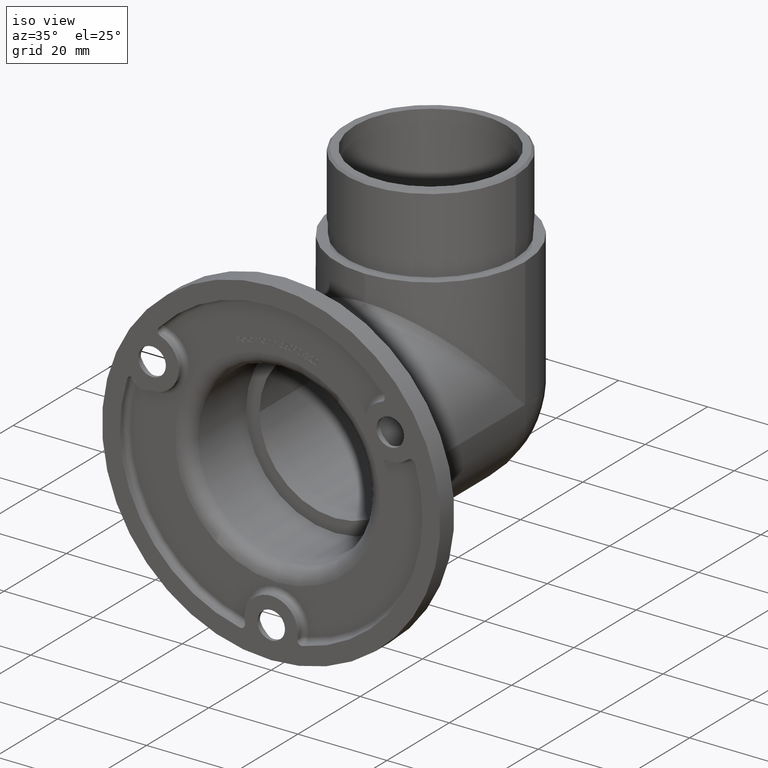
[diagram: clean part render]
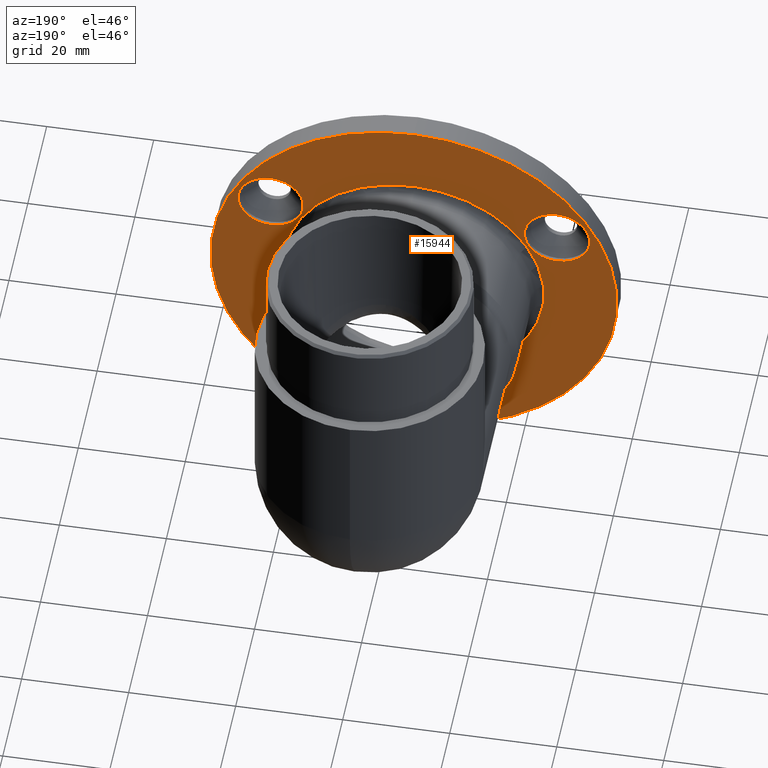
[diagram: tour spotlight — one face highlighted and labeled with its STEP entity id]
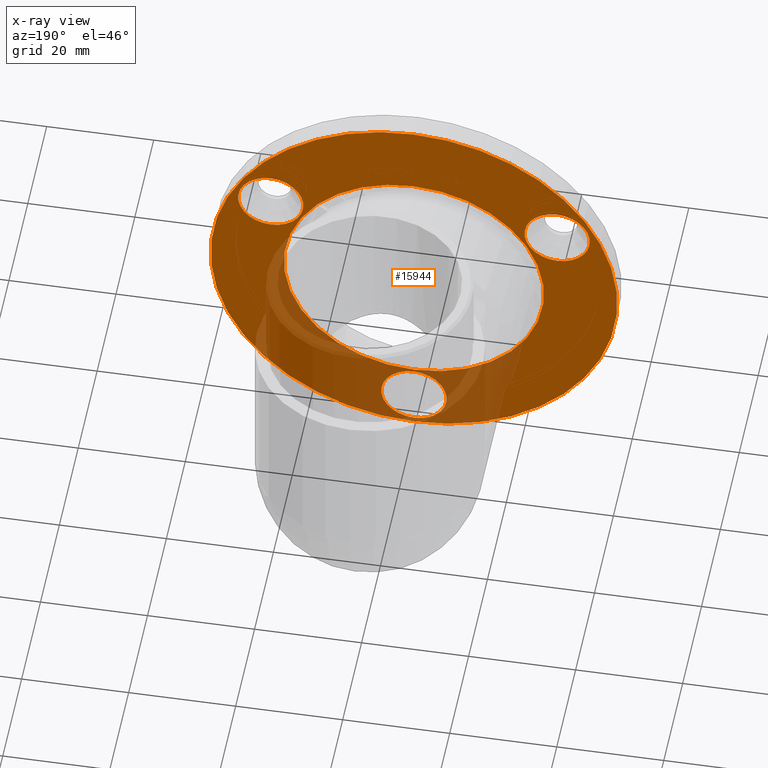
[diagram: x-ray of the same camera — body ghosted, this tour face saturated]
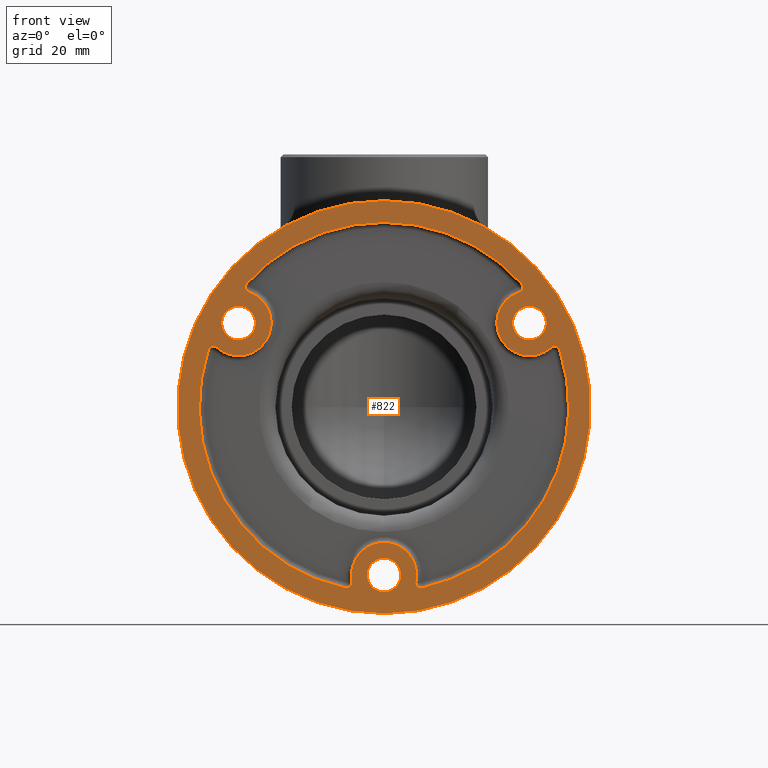
[diagram: tour spotlight — one face highlighted and labeled with its STEP entity id]
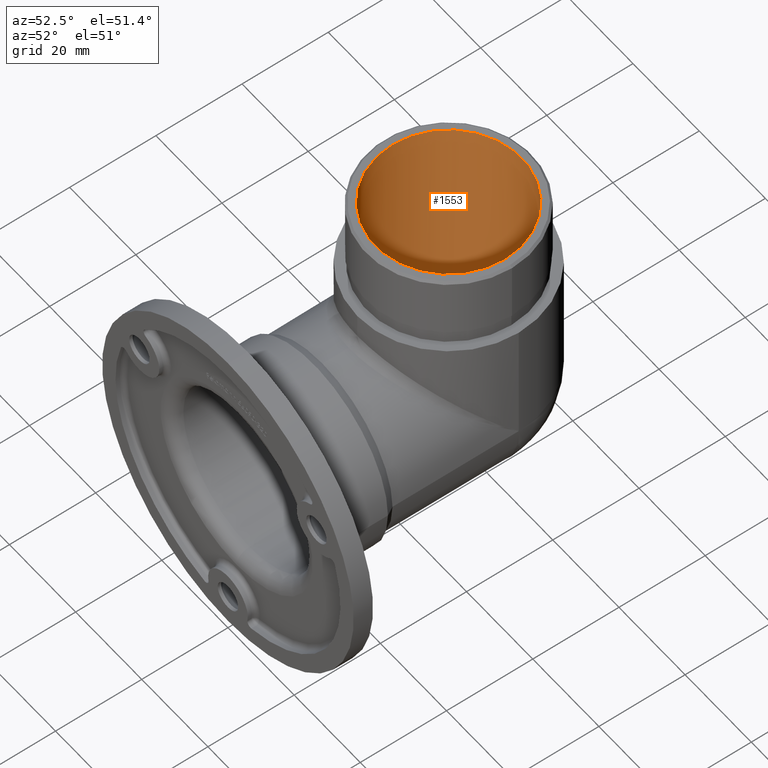
[diagram: tour spotlight — one face highlighted and labeled with its STEP entity id]
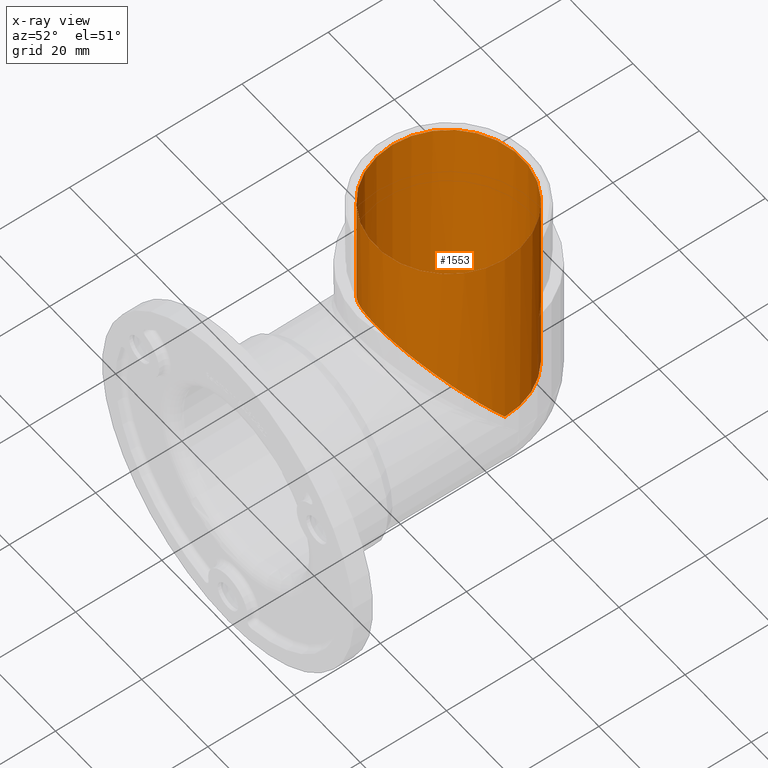
[diagram: x-ray of the same camera — body ghosted, this tour face saturated]
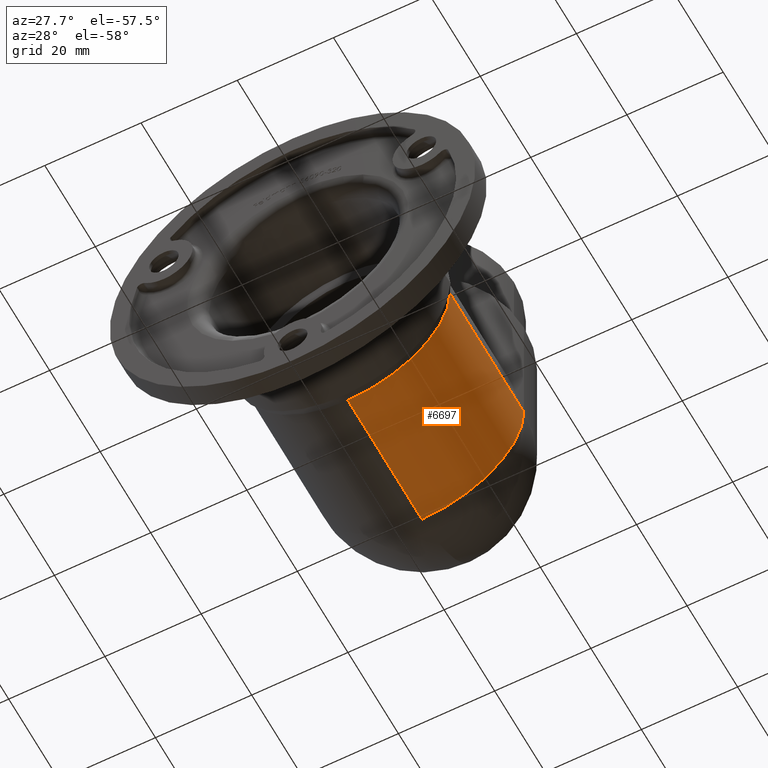
[diagram: tour spotlight — one face highlighted and labeled with its STEP entity id]
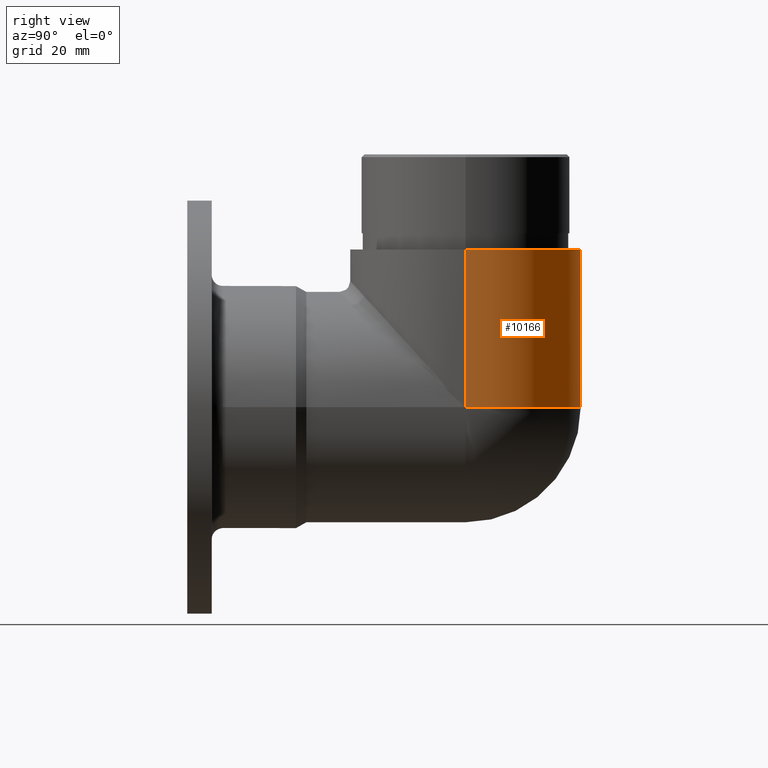
[diagram: tour spotlight — one face highlighted and labeled with its STEP entity id]
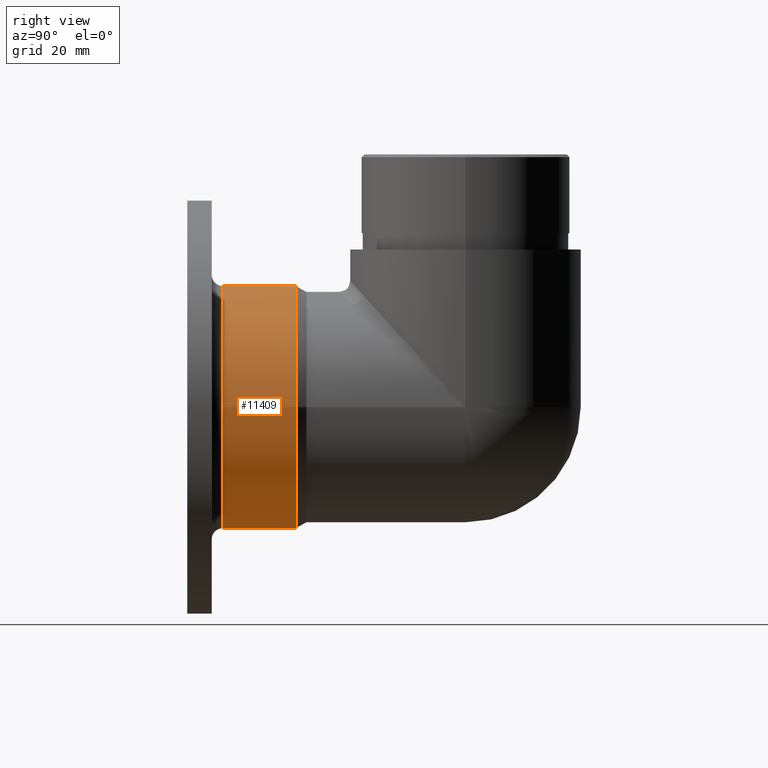
[diagram: tour spotlight — one face highlighted and labeled with its STEP entity id]
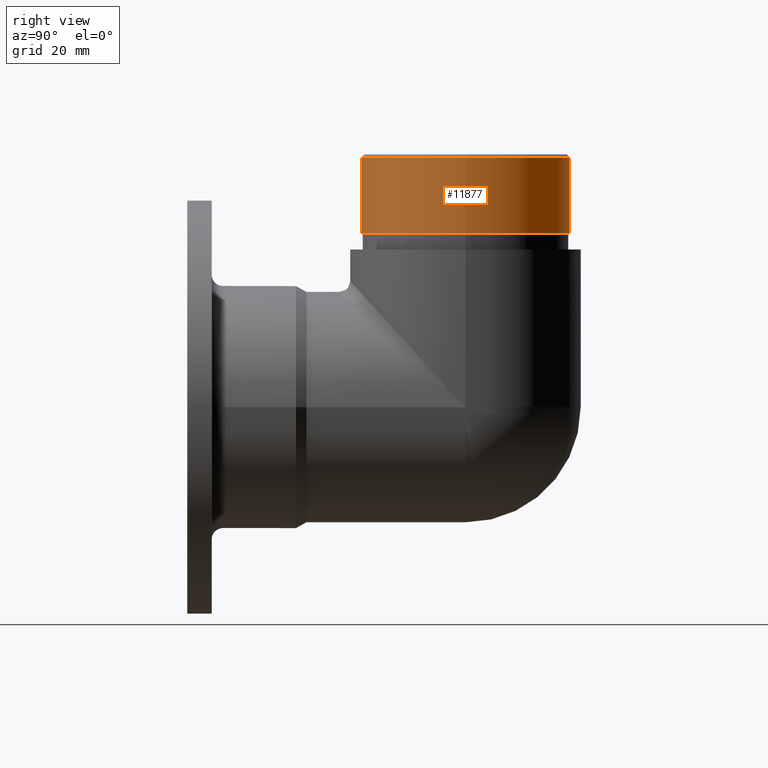
[diagram: tour spotlight — one face highlighted and labeled with its STEP entity id]
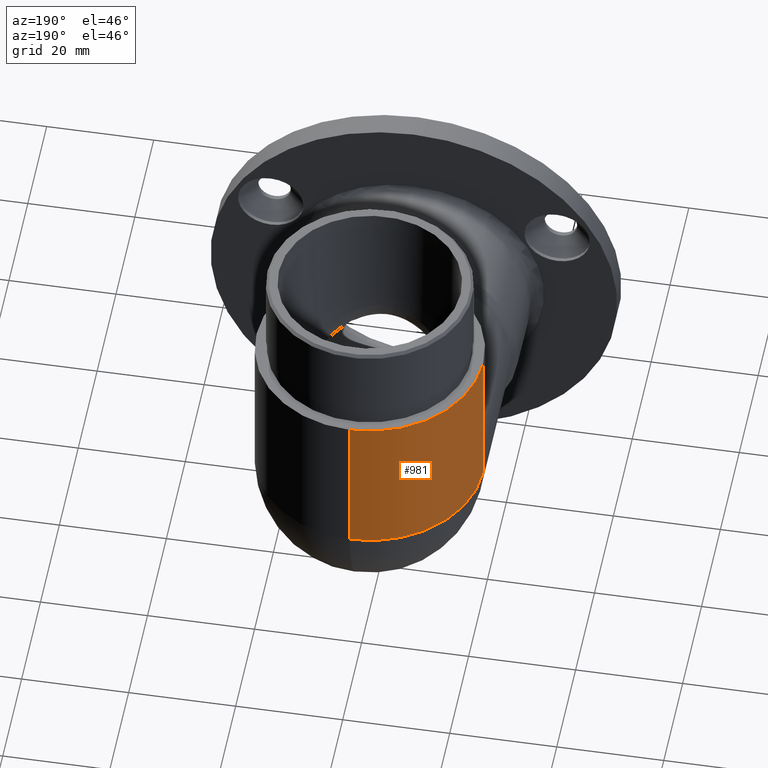
[diagram: tour spotlight — one face highlighted and labeled with its STEP entity id]
A machine part: a face-by-face anatomy tour. The part has 295 B-rep faces; the first image is the clean iso view, then the 8 largest visible faces are spotlighted one at a time (largest first), each with its STEP entity span.

Face 1 — auxiliary view, entity #15944. An x-ray twin of the same camera follows (body ghosted, this face saturated) — the face is partly hidden behind the body. In plain terms, the highlighted planar face has unit normal (0, 1, 0).
Definition (entity closure, byte-faithful):
#611 = EDGE_LOOP ( 'NONE', ( #1539 ) ) ;
#709 = DIRECTION ( 'NONE',  ( 0.0000000000000000000, 1.000000000000000000, 0.0000000000000000000 ) ) ;
#872 = AXIS2_PLACEMENT_3D ( 'NONE', #7869, #709, #9324 ) ;
#1075 = DIRECTION ( 'NONE',  ( 0.0000000000000000000, 0.0000000000000000000, 1.000000000000000000 ) ) ;
#1368 = ORIENTED_EDGE ( 'NONE', *, *, #13413, .T. ) ;
#1539 = ORIENTED_EDGE ( 'NONE', *, *, #3757, .F. ) ;
#2012 = DIRECTION ( 'NONE',  ( -0.0000000000000000000, 1.000000000000000000, -0.0000000000000000000 ) ) ;
#2114 = AXIS2_PLACEMENT_3D ( 'NONE', #13062, #13179, #13125 ) ;
#2130 = FACE_BOUND ( 'NONE', #10243, .T. ) ;
#2617 = ORIENTED_EDGE ( 'NONE', *, *, #11120, .F. ) ;
#2792 = CARTESIAN_POINT ( 'NONE',  ( -26.76018497693929300, 4.500000000000000000, 15.44999999999975100 ) ) ;
#2922 = ORIENTED_EDGE ( 'NONE', *, *, #8093, .F. ) ;
#3622 = EDGE_LOOP ( 'NONE', ( #9442 ) ) ;
#3651 = FACE_OUTER_BOUND ( 'NONE', #9746, .T. ) ;
#3757 = EDGE_CURVE ( 'NONE', #15256, #15256, #5162, .T. ) ;
#4006 = DIRECTION ( 'NONE',  ( 0.0000000000000000000, 0.0000000000000000000, 1.000000000000000000 ) ) ;
#4446 = CIRCLE ( 'NONE', #8685, 37.99999999999999300 ) ;
#5162 = CIRCLE ( 'NONE', #13972, 6.099999999999999600 ) ;
#5196 = VERTEX_POINT ( 'NONE', #10627 ) ;
#5583 = VERTEX_POINT ( 'NONE', #6894 ) ;
#5825 = EDGE_CURVE ( 'NONE', #11389, #11389, #11000, .T. ) ;
#6309 = AXIS2_PLACEMENT_3D ( 'NONE', #8124, #2012, #7046 ) ;
#6367 = FACE_BOUND ( 'NONE', #8830, .T. ) ;
#6707 = CARTESIAN_POINT ( 'NONE',  ( 1.425287815338394800E-015, 4.500000000000000000, 0.0000000000000000000 ) ) ;
#6894 = CARTESIAN_POINT ( 'NONE',  ( 0.0000000000000000000, 4.500000000000000000, -24.79999999999999700 ) ) ;
#7011 = CARTESIAN_POINT ( 'NONE',  ( 1.425287815338394800E-015, 4.500000000000000000, 24.29999999999999400 ) ) ;
#7046 = DIRECTION ( 'NONE',  ( 0.0000000000000000000, 0.0000000000000000000, 1.000000000000000000 ) ) ;
#7203 = CARTESIAN_POINT ( 'NONE',  ( 0.0000000000000000000, 4.500000000000000000, 0.0000000000000000000 ) ) ;
#7869 = CARTESIAN_POINT ( 'NONE',  ( 0.0000000000000000000, 4.500000000000000000, 0.0000000000000000000 ) ) ;
#7933 = CARTESIAN_POINT ( 'NONE',  ( -26.76018497693929300, 4.500000000000000000, 21.54999999999974800 ) ) ;
#7954 = DIRECTION ( 'NONE',  ( -0.0000000000000000000, -1.000000000000000000, -0.0000000000000000000 ) ) ;
#8093 = EDGE_CURVE ( 'NONE', #5196, #5196, #9039, .T. ) ;
#8124 = CARTESIAN_POINT ( 'NONE',  ( 0.0000000000000000000, 4.500000000000000000, -30.89999999999999900 ) ) ;
#8685 = AXIS2_PLACEMENT_3D ( 'NONE', #7203, #10829, #1075 ) ;
#8830 = EDGE_LOOP ( 'NONE', ( #2617 ) ) ;
#8852 = FACE_BOUND ( 'NONE', #3622, .T. ) ;
#9039 = CIRCLE ( 'NONE', #2114, 6.099999999999999600 ) ;
#9324 = DIRECTION ( 'NONE',  ( 0.0000000000000000000, -0.0000000000000000000, 1.000000000000000000 ) ) ;
#9442 = ORIENTED_EDGE ( 'NONE', *, *, #5825, .T. ) ;
#9746 = EDGE_LOOP ( 'NONE', ( #1368 ) ) ;
#9927 = AXIS2_PLACEMENT_3D ( 'NONE', #6707, #7954, #15415 ) ;
#10243 = EDGE_LOOP ( 'NONE', ( #2922 ) ) ;
#10627 = CARTESIAN_POINT ( 'NONE',  ( 26.76018497693908300, 4.500000000000000000, 21.55000000000012500 ) ) ;
#10829 = DIRECTION ( 'NONE',  ( 0.0000000000000000000, 1.000000000000000000, 0.0000000000000000000 ) ) ;
#11000 = CIRCLE ( 'NONE', #9927, 24.29999999999999400 ) ;
#11120 = EDGE_CURVE ( 'NONE', #5583, #5583, #13169, .T. ) ;
#11389 = VERTEX_POINT ( 'NONE', #7011 ) ;
#11408 = DIRECTION ( 'NONE',  ( -0.0000000000000000000, 1.000000000000000000, -0.0000000000000000000 ) ) ;
#12942 = PLANE ( 'NONE',  #872 ) ;
#13062 = CARTESIAN_POINT ( 'NONE',  ( 26.76018497693908300, 4.500000000000000000, 15.45000000000012500 ) ) ;
#13110 = FACE_BOUND ( 'NONE', #611, .T. ) ;
#13125 = DIRECTION ( 'NONE',  ( 0.0000000000000000000, 0.0000000000000000000, 1.000000000000000000 ) ) ;
#13169 = CIRCLE ( 'NONE', #6309, 6.100000000000001400 ) ;
#13179 = DIRECTION ( 'NONE',  ( -0.0000000000000000000, 1.000000000000000000, -0.0000000000000000000 ) ) ;
#13257 = CARTESIAN_POINT ( 'NONE',  ( 0.0000000000000000000, 4.500000000000000000, 37.99999999999999300 ) ) ;
#13413 = EDGE_CURVE ( 'NONE', #14093, #14093, #4446, .T. ) ;
#13972 = AXIS2_PLACEMENT_3D ( 'NONE', #2792, #11408, #4006 ) ;
#14093 = VERTEX_POINT ( 'NONE', #13257 ) ;
#15256 = VERTEX_POINT ( 'NONE', #7933 ) ;
#15415 = DIRECTION ( 'NONE',  ( 0.0000000000000000000, 0.0000000000000000000, 1.000000000000000000 ) ) ;
#15944 = ADVANCED_FACE ( 'NONE', ( #8852, #13110, #2130, #6367, #3651 ), #12942, .T. ) ;

Face 2 — front view, entity #822. In plain terms, the highlighted planar face has unit normal (0, -1, 0).
Definition (entity closure, byte-faithful):
#1 = CIRCLE ( 'NONE', #9635, 5.999999999999998200 ) ;
#29 = DIRECTION ( 'NONE',  ( -0.0000000000000000000, 1.000000000000000000, -0.0000000000000000000 ) ) ;
#107 = CARTESIAN_POINT ( 'NONE',  ( 0.0000000000000000000, 0.0000000000000000000, -30.89999999999999900 ) ) ;
#187 = VERTEX_POINT ( 'NONE', #7060 ) ;
#399 = VERTEX_POINT ( 'NONE', #11394 ) ;
#459 = AXIS2_PLACEMENT_3D ( 'NONE', #15043, #11087, #9992 ) ;
#563 = VERTEX_POINT ( 'NONE', #1522 ) ;
#575 = PLANE ( 'NONE',  #4452 ) ;
#691 = DIRECTION ( 'NONE',  ( 0.0000000000000000000, 0.0000000000000000000, -1.000000000000000000 ) ) ;
#759 = VERTEX_POINT ( 'NONE', #5213 ) ;
#822 = ADVANCED_FACE ( 'NONE', ( #1521, #6118, #15600, #12288, #14053 ), #575, .T. ) ;
#825 = CARTESIAN_POINT ( 'NONE',  ( -6.862929093667157000, 0.0000000000000000000, -32.27847896440129500 ) ) ;
#855 = AXIS2_PLACEMENT_3D ( 'NONE', #8792, #13958, #10151 ) ;
#945 = VERTEX_POINT ( 'NONE', #2037 ) ;
#964 = DIRECTION ( 'NONE',  ( 0.0000000000000000000, 0.0000000000000000000, -1.000000000000000000 ) ) ;
#1058 = EDGE_LOOP ( 'NONE', ( #9030 ) ) ;
#1174 = VERTEX_POINT ( 'NONE', #9013 ) ;
#1239 = ORIENTED_EDGE ( 'NONE', *, *, #1492, .T. ) ;
#1492 = EDGE_CURVE ( 'NONE', #563, #9530, #6877, .T. ) ;
#1521 = FACE_OUTER_BOUND ( 'NONE', #13092, .T. ) ;
#1522 = CARTESIAN_POINT ( 'NONE',  ( -24.84218490972826700, 0.0000000000000000000, 21.13518036144638800 ) ) ;
#1671 = DIRECTION ( 'NONE',  ( 0.0000000000000000000, -1.000000000000000000, 0.0000000000000000000 ) ) ;
#1926 = CIRCLE ( 'NONE', #6841, 3.100000000000000500 ) ;
#1948 = VERTEX_POINT ( 'NONE', #11870 ) ;
#2037 = CARTESIAN_POINT ( 'NONE',  ( -30.72469556144287800, 0.0000000000000000000, 10.94637303661134800 ) ) ;
#2320 = CIRCLE ( 'NONE', #13152, 3.099999999999998800 ) ;
#2375 = DIRECTION ( 'NONE',  ( 0.0000000000000000000, -1.000000000000000000, 0.0000000000000000000 ) ) ;
#2425 = ORIENTED_EDGE ( 'NONE', *, *, #10508, .F. ) ;
#2662 = CARTESIAN_POINT ( 'NONE',  ( -24.52251823185976300, 0.0000000000000000000, 22.08271042168749400 ) ) ;
#2666 = CARTESIAN_POINT ( 'NONE',  ( -25.26562484494642600, 0.0000000000000000000, 22.75188346476893700 ) ) ;
#2721 = AXIS2_PLACEMENT_3D ( 'NONE', #9983, #4011, #13661 ) ;
#2729 = CARTESIAN_POINT ( 'NONE',  ( 26.76018497693908300, 0.0000000000000000000, 15.45000000000012500 ) ) ;
#2731 = ORIENTED_EDGE ( 'NONE', *, *, #12155, .F. ) ;
#2789 = DIRECTION ( 'NONE',  ( 0.0000000000000000000, 0.0000000000000000000, -1.000000000000000000 ) ) ;
#3188 = CARTESIAN_POINT ( 'NONE',  ( 0.0000000000000000000, 0.0000000000000000000, 0.0000000000000000000 ) ) ;
#3273 = CIRCLE ( 'NONE', #13446, 1.000000000000000900 ) ;
#3406 = CARTESIAN_POINT ( 'NONE',  ( -26.76018497693929300, 0.0000000000000000000, 12.34999999999974900 ) ) ;
#3547 = CARTESIAN_POINT ( 'NONE',  ( -7.070896641960102300, 0.0000000000000000000, -33.25661469059527800 ) ) ;
#3553 = ORIENTED_EDGE ( 'NONE', *, *, #14329, .T. ) ;
#3594 = CARTESIAN_POINT ( 'NONE',  ( -32.33652148690642700, 0.0000000000000000000, 10.50473122582579500 ) ) ;
#3832 = CARTESIAN_POINT ( 'NONE',  ( -31.38544732552681900, 0.0000000000000000000, 10.19576854271327100 ) ) ;
#3841 = CIRCLE ( 'NONE', #459, 1.000000000000000900 ) ;
#3897 = AXIS2_PLACEMENT_3D ( 'NONE', #9760, #15029, #8906 ) ;
#4011 = DIRECTION ( 'NONE',  ( 0.0000000000000000000, -1.000000000000000000, 0.0000000000000000000 ) ) ;
#4073 = CIRCLE ( 'NONE', #2721, 34.00000000000000000 ) ;
#4315 = DIRECTION ( 'NONE',  ( -0.0000000000000000000, 1.000000000000000000, -0.0000000000000000000 ) ) ;
#4452 = AXIS2_PLACEMENT_3D ( 'NONE', #15155, #1671, #12802 ) ;
#4552 = ORIENTED_EDGE ( 'NONE', *, *, #15404, .F. ) ;
#4716 = ORIENTED_EDGE ( 'NONE', *, *, #15469, .F. ) ;
#5191 = VERTEX_POINT ( 'NONE', #14777 ) ;
#5213 = CARTESIAN_POINT ( 'NONE',  ( 32.33652148690627100, 0.0000000000000000000, 10.50473122582626000 ) ) ;
#5224 = CIRCLE ( 'NONE', #855, 6.000000000000000000 ) ;
#5525 = EDGE_CURVE ( 'NONE', #11310, #945, #12740, .T. ) ;
#5711 = AXIS2_PLACEMENT_3D ( 'NONE', #9227, #12955, #6906 ) ;
#5761 = EDGE_CURVE ( 'NONE', #563, #945, #5224, .T. ) ;
#5814 = DIRECTION ( 'NONE',  ( -0.0000000000000000000, 1.000000000000000000, -0.0000000000000000000 ) ) ;
#5885 = ORIENTED_EDGE ( 'NONE', *, *, #13513, .T. ) ;
#6022 = DIRECTION ( 'NONE',  ( 0.0000000000000000000, 0.0000000000000000000, -1.000000000000000000 ) ) ;
#6118 = FACE_BOUND ( 'NONE', #1058, .T. ) ;
#6409 = CIRCLE ( 'NONE', #15438, 3.100000000000000500 ) ;
#6521 = AXIS2_PLACEMENT_3D ( 'NONE', #3188, #12776, #6881 ) ;
#6841 = AXIS2_PLACEMENT_3D ( 'NONE', #2729, #15143, #2789 ) ;
#6877 = CIRCLE ( 'NONE', #9591, 1.000000000000000900 ) ;
#6881 = DIRECTION ( 'NONE',  ( 0.0000000000000000000, 0.0000000000000000000, 1.000000000000000000 ) ) ;
#6906 = DIRECTION ( 'NONE',  ( -3.469446951953611000E-015, 0.0000000000000000000, -1.000000000000000000 ) ) ;
#6958 = DIRECTION ( 'NONE',  ( 0.0000000000000000000, 0.0000000000000000000, -1.000000000000000000 ) ) ;
#7060 = CARTESIAN_POINT ( 'NONE',  ( 0.0000000000000000000, 0.0000000000000000000, 37.99999999999999300 ) ) ;
#7166 = AXIS2_PLACEMENT_3D ( 'NONE', #825, #11871, #6958 ) ;
#7208 = VERTEX_POINT ( 'NONE', #9751 ) ;
#7241 = DIRECTION ( 'NONE',  ( 0.0000000000000000000, -1.000000000000000000, 0.0000000000000000000 ) ) ;
#7509 = DIRECTION ( 'NONE',  ( 0.0000000000000000000, 0.0000000000000000000, -1.000000000000000000 ) ) ;
#7553 = CIRCLE ( 'NONE', #6521, 37.99999999999999300 ) ;
#7722 = EDGE_CURVE ( 'NONE', #1174, #759, #3273, .T. ) ;
#7779 = EDGE_CURVE ( 'NONE', #1948, #1948, #2320, .T. ) ;
#7957 = CARTESIAN_POINT ( 'NONE',  ( 26.76018497693908300, -0.0000000000000000000, 15.45000000000012500 ) ) ;
#8370 = EDGE_CURVE ( 'NONE', #13090, #13090, #1926, .T. ) ;
#8373 = CARTESIAN_POINT ( 'NONE',  ( 0.0000000000000000000, 0.0000000000000000000, 0.0000000000000000000 ) ) ;
#8498 = ORIENTED_EDGE ( 'NONE', *, *, #11093, .F. ) ;
#8608 = DIRECTION ( 'NONE',  ( 0.0000000000000000000, 0.0000000000000000000, -1.000000000000000000 ) ) ;
#8792 = CARTESIAN_POINT ( 'NONE',  ( -26.76018497693929300, 0.0000000000000000000, 15.44999999999975100 ) ) ;
#8834 = CIRCLE ( 'NONE', #7166, 1.000000000000000900 ) ;
#8906 = DIRECTION ( 'NONE',  ( 0.0000000000000000000, 0.0000000000000000000, -1.000000000000000000 ) ) ;
#9013 = CARTESIAN_POINT ( 'NONE',  ( 30.72469556144273300, 0.0000000000000000000, 10.94637303661177600 ) ) ;
#9030 = ORIENTED_EDGE ( 'NONE', *, *, #7779, .F. ) ;
#9227 = CARTESIAN_POINT ( 'NONE',  ( 24.52251823185945100, 0.0000000000000000000, 22.08271042168784200 ) ) ;
#9465 = DIRECTION ( 'NONE',  ( -0.0000000000000000000, 1.000000000000000000, -0.0000000000000000000 ) ) ;
#9530 = VERTEX_POINT ( 'NONE', #2666 ) ;
#9591 = AXIS2_PLACEMENT_3D ( 'NONE', #2662, #29, #8608 ) ;
#9621 = CARTESIAN_POINT ( 'NONE',  ( -26.76018497693929300, 0.0000000000000000000, 15.44999999999975100 ) ) ;
#9622 = CARTESIAN_POINT ( 'NONE',  ( 7.070896641960116500, 0.0000000000000000000, -33.25661469059527100 ) ) ;
#9635 = AXIS2_PLACEMENT_3D ( 'NONE', #14671, #5814, #964 ) ;
#9751 = CARTESIAN_POINT ( 'NONE',  ( 5.882510651714707000, 0.0000000000000000000, -32.08155339805825400 ) ) ;
#9760 = CARTESIAN_POINT ( 'NONE',  ( 0.0000000000000000000, 0.0000000000000000000, 0.0000000000000000000 ) ) ;
#9983 = CARTESIAN_POINT ( 'NONE',  ( 0.0000000000000000000, 0.0000000000000000000, 0.0000000000000000000 ) ) ;
#9992 = DIRECTION ( 'NONE',  ( -5.204170427930416600E-015, 0.0000000000000000000, -1.000000000000000000 ) ) ;
#10001 = CIRCLE ( 'NONE', #10881, 6.000000000000000000 ) ;
#10151 = DIRECTION ( 'NONE',  ( 0.0000000000000000000, 0.0000000000000000000, -1.000000000000000000 ) ) ;
#10407 = VERTEX_POINT ( 'NONE', #3406 ) ;
#10455 = ORIENTED_EDGE ( 'NONE', *, *, #13694, .F. ) ;
#10508 = EDGE_CURVE ( 'NONE', #11310, #13491, #11328, .T. ) ;
#10601 = CIRCLE ( 'NONE', #14738, 34.00000000000000000 ) ;
#10841 = ORIENTED_EDGE ( 'NONE', *, *, #7722, .T. ) ;
#10881 = AXIS2_PLACEMENT_3D ( 'NONE', #7957, #4315, #15325 ) ;
#10976 = DIRECTION ( 'NONE',  ( 0.0000000000000000000, 0.0000000000000000000, -1.000000000000000000 ) ) ;
#11020 = ORIENTED_EDGE ( 'NONE', *, *, #5761, .F. ) ;
#11087 = DIRECTION ( 'NONE',  ( -0.0000000000000000000, 1.000000000000000000, -0.0000000000000000000 ) ) ;
#11093 = EDGE_CURVE ( 'NONE', #187, #187, #7553, .T. ) ;
#11160 = DIRECTION ( 'NONE',  ( 0.0000000000000000000, 0.0000000000000000000, -1.000000000000000000 ) ) ;
#11182 = VERTEX_POINT ( 'NONE', #14195 ) ;
#11241 = EDGE_CURVE ( 'NONE', #10407, #10407, #6409, .T. ) ;
#11310 = VERTEX_POINT ( 'NONE', #3594 ) ;
#11328 = CIRCLE ( 'NONE', #3897, 34.00000000000000000 ) ;
#11330 = DIRECTION ( 'NONE',  ( -0.0000000000000000000, 1.000000000000000000, -0.0000000000000000000 ) ) ;
#11394 = CARTESIAN_POINT ( 'NONE',  ( -5.882510651714707000, 0.0000000000000000000, -32.08155339805825400 ) ) ;
#11870 = CARTESIAN_POINT ( 'NONE',  ( 0.0000000000000000000, 0.0000000000000000000, -33.99999999999999300 ) ) ;
#11871 = DIRECTION ( 'NONE',  ( -0.0000000000000000000, 1.000000000000000000, -0.0000000000000000000 ) ) ;
#11898 = CARTESIAN_POINT ( 'NONE',  ( 31.38544732552667300, 0.0000000000000000000, 10.19576854271372200 ) ) ;
#12144 = ORIENTED_EDGE ( 'NONE', *, *, #8370, .F. ) ;
#12155 = EDGE_CURVE ( 'NONE', #11182, #9530, #4073, .T. ) ;
#12288 = FACE_BOUND ( 'NONE', #15570, .T. ) ;
#12342 = EDGE_LOOP ( 'NONE', ( #2425, #14592, #11020, #1239, #2731, #15254, #10455, #10841, #4716, #5885, #4552, #3553 ) ) ;
#12411 = EDGE_CURVE ( 'NONE', #11182, #5191, #13915, .T. ) ;
#12419 = DIRECTION ( 'NONE',  ( 0.0000000000000000000, -1.000000000000000000, 0.0000000000000000000 ) ) ;
#12740 = CIRCLE ( 'NONE', #14608, 1.000000000000000900 ) ;
#12776 = DIRECTION ( 'NONE',  ( 0.0000000000000000000, 1.000000000000000000, 0.0000000000000000000 ) ) ;
#12802 = DIRECTION ( 'NONE',  ( 0.0000000000000000000, -0.0000000000000000000, -1.000000000000000000 ) ) ;
#12955 = DIRECTION ( 'NONE',  ( -0.0000000000000000000, 1.000000000000000000, -0.0000000000000000000 ) ) ;
#13090 = VERTEX_POINT ( 'NONE', #14312 ) ;
#13092 = EDGE_LOOP ( 'NONE', ( #8498 ) ) ;
#13152 = AXIS2_PLACEMENT_3D ( 'NONE', #107, #12419, #7509 ) ;
#13184 = ORIENTED_EDGE ( 'NONE', *, *, #11241, .F. ) ;
#13436 = VERTEX_POINT ( 'NONE', #9622 ) ;
#13446 = AXIS2_PLACEMENT_3D ( 'NONE', #11898, #9465, #691 ) ;
#13491 = VERTEX_POINT ( 'NONE', #3547 ) ;
#13513 = EDGE_CURVE ( 'NONE', #13436, #7208, #3841, .T. ) ;
#13661 = DIRECTION ( 'NONE',  ( 0.0000000000000000000, 0.0000000000000000000, -1.000000000000000000 ) ) ;
#13694 = EDGE_CURVE ( 'NONE', #1174, #5191, #10001, .T. ) ;
#13911 = EDGE_LOOP ( 'NONE', ( #12144 ) ) ;
#13915 = CIRCLE ( 'NONE', #5711, 1.000000000000000900 ) ;
#13958 = DIRECTION ( 'NONE',  ( -0.0000000000000000000, 1.000000000000000000, -0.0000000000000000000 ) ) ;
#14053 = FACE_BOUND ( 'NONE', #12342, .T. ) ;
#14195 = CARTESIAN_POINT ( 'NONE',  ( 25.26562484494610000, 0.0000000000000000000, 22.75188346476929600 ) ) ;
#14312 = CARTESIAN_POINT ( 'NONE',  ( 26.76018497693908300, 0.0000000000000000000, 12.35000000000012400 ) ) ;
#14329 = EDGE_CURVE ( 'NONE', #399, #13491, #8834, .T. ) ;
#14592 = ORIENTED_EDGE ( 'NONE', *, *, #5525, .T. ) ;
#14608 = AXIS2_PLACEMENT_3D ( 'NONE', #3832, #11330, #11160 ) ;
#14671 = CARTESIAN_POINT ( 'NONE',  ( 0.0000000000000000000, 0.0000000000000000000, -30.89999999999999900 ) ) ;
#14738 = AXIS2_PLACEMENT_3D ( 'NONE', #8373, #7241, #6022 ) ;
#14777 = CARTESIAN_POINT ( 'NONE',  ( 24.84218490972797300, 0.0000000000000000000, 21.13518036144673200 ) ) ;
#15029 = DIRECTION ( 'NONE',  ( 0.0000000000000000000, -1.000000000000000000, 0.0000000000000000000 ) ) ;
#15043 = CARTESIAN_POINT ( 'NONE',  ( 6.862929093667171200, 0.0000000000000000000, -32.27847896440129500 ) ) ;
#15143 = DIRECTION ( 'NONE',  ( 0.0000000000000000000, -1.000000000000000000, 0.0000000000000000000 ) ) ;
#15155 = CARTESIAN_POINT ( 'NONE',  ( 0.0000000000000000000, 0.0000000000000000000, 0.0000000000000000000 ) ) ;
#15254 = ORIENTED_EDGE ( 'NONE', *, *, #12411, .T. ) ;
#15325 = DIRECTION ( 'NONE',  ( 0.0000000000000000000, 0.0000000000000000000, -1.000000000000000000 ) ) ;
#15404 = EDGE_CURVE ( 'NONE', #399, #7208, #1, .T. ) ;
#15438 = AXIS2_PLACEMENT_3D ( 'NONE', #9621, #2375, #10976 ) ;
#15469 = EDGE_CURVE ( 'NONE', #13436, #759, #10601, .T. ) ;
#15570 = EDGE_LOOP ( 'NONE', ( #13184 ) ) ;
#15600 = FACE_BOUND ( 'NONE', #13911, .T. ) ;

Face 3 — auxiliary view, entity #1553. An x-ray twin of the same camera follows (body ghosted, this face saturated) — the face is partly hidden behind the body. In plain terms, the highlighted cylindrical surface (bore or boss wall) has radius 17 mm, axis along (0, -0, 1).
Definition (entity closure, byte-faithful):
#327 = CARTESIAN_POINT ( 'NONE',  ( 6.310515369892041900E-015, 34.20000000000003100, 23.19999999999999900 ) ) ;
#362 = DIRECTION ( 'NONE',  ( 0.0000000000000000000, -2.392722035830079000E-016, 1.000000000000000000 ) ) ;
#440 = ORIENTED_EDGE ( 'NONE', *, *, #9233, .F. ) ;
#505 = VERTEX_POINT ( 'NONE', #3880 ) ;
#1183 = ORIENTED_EDGE ( 'NONE', *, *, #12237, .F. ) ;
#1553 = ADVANCED_FACE ( 'NONE', ( #13840, #5928 ), #9764, .F. ) ;
#1718 = CARTESIAN_POINT ( 'NONE',  ( -16.99999999999999600, 51.20000000000002400, -3.465976141278634700E-016 ) ) ;
#1772 = CIRCLE ( 'NONE', #6438, 17.00000000000000000 ) ;
#1801 = CIRCLE ( 'NONE', #15842, 17.00000000000000000 ) ;
#3212 = CARTESIAN_POINT ( 'NONE',  ( 6.310515369892041900E-015, 34.20000000000003100, 23.19999999999999900 ) ) ;
#3388 = EDGE_CURVE ( 'NONE', #9712, #505, #1801, .T. ) ;
#3843 = VERTEX_POINT ( 'NONE', #13205 ) ;
#3880 = CARTESIAN_POINT ( 'NONE',  ( 3.469446951953614200E-015, 68.20000000000001700, -4.427692703177301300E-016 ) ) ;
#3882 = CARTESIAN_POINT ( 'NONE',  ( 9.958369439657389000, 34.20000000000002400, 23.20000000000000300 ) ) ;
#3917 = CARTESIAN_POINT ( 'NONE',  ( 3.469446951953614200E-015, 51.20000000000001700, -3.469446951953614200E-015 ) ) ;
#4055 = DIRECTION ( 'NONE',  ( 1.000000000000000000, 0.0000000000000000000, 0.0000000000000000000 ) ) ;
#4841 = EDGE_LOOP ( 'NONE', ( #7358 ) ) ;
#5656 = AXIS2_PLACEMENT_3D ( 'NONE', #3917, #362, #10214 ) ;
#5785 = AXIS2_PLACEMENT_3D ( 'NONE', #12397, #13707, #7377 ) ;
#5822 =( BOUNDED_CURVE ( )  B_SPLINE_CURVE ( 3, ( #327, #3882, #12487, #13756 ),
 .UNSPECIFIED., .F., .F. ) 
 B_SPLINE_CURVE_WITH_KNOTS ( ( 4, 4 ),
 ( 0.0000000000000000000, 1.570796326794896800 ),
 .UNSPECIFIED. ) 
 CURVE ( )  GEOMETRIC_REPRESENTATION_ITEM ( )  RATIONAL_B_SPLINE_CURVE ( ( 1.000000000000000000, 0.8047378541243649400, 0.8047378541243649400, 1.000000000000000000 ) ) 
 REPRESENTATION_ITEM ( '' )  );
#5928 = FACE_OUTER_BOUND ( 'NONE', #4841, .T. ) ;
#6438 = AXIS2_PLACEMENT_3D ( 'NONE', #11451, #13811, #4055 ) ;
#7358 = ORIENTED_EDGE ( 'NONE', *, *, #12762, .T. ) ;
#7377 = DIRECTION ( 'NONE',  ( 0.0000000000000000000, -1.000000000000000000, -2.040851148208008200E-016 ) ) ;
#7632 = CARTESIAN_POINT ( 'NONE',  ( 17.00000000000000700, 51.20000000000002400, -3.469446951953615000E-015 ) ) ;
#8437 = VERTEX_POINT ( 'NONE', #9539 ) ;
#8539 = ORIENTED_EDGE ( 'NONE', *, *, #3388, .F. ) ;
#8787 = EDGE_CURVE ( 'NONE', #15747, #9712, #5822, .T. ) ;
#9183 = CARTESIAN_POINT ( 'NONE',  ( -9.958369439657380100, 34.20000000000002400, 23.20000000000000300 ) ) ;
#9233 = EDGE_CURVE ( 'NONE', #505, #8437, #11146, .T. ) ;
#9539 = CARTESIAN_POINT ( 'NONE',  ( -16.99999999999999600, 51.20000000000002400, -3.465976141278634700E-016 ) ) ;
#9712 = VERTEX_POINT ( 'NONE', #7632 ) ;
#9764 = CYLINDRICAL_SURFACE ( 'NONE', #5785, 17.00000000000000000 ) ;
#10214 = DIRECTION ( 'NONE',  ( 0.0000000000000000000, -1.000000000000000000, -2.392722035830079000E-016 ) ) ;
#11132 = CARTESIAN_POINT ( 'NONE',  ( 5.352986175202233300E-015, 51.20000000000001700, -3.469446951953614200E-015 ) ) ;
#11146 = CIRCLE ( 'NONE', #5656, 17.00000000000000000 ) ;
#11255 = ORIENTED_EDGE ( 'NONE', *, *, #8787, .F. ) ;
#11451 = CARTESIAN_POINT ( 'NONE',  ( 5.352986175202233300E-015, 51.20000000000001700, 46.49999999999997900 ) ) ;
#12023 =( BOUNDED_CURVE ( )  B_SPLINE_CURVE ( 3, ( #1718, #14000, #9183, #13888 ),
 .UNSPECIFIED., .F., .F. ) 
 B_SPLINE_CURVE_WITH_KNOTS ( ( 4, 4 ),
 ( 4.712388980384689700, 6.283185307179586200 ),
 .UNSPECIFIED. ) 
 CURVE ( )  GEOMETRIC_REPRESENTATION_ITEM ( )  RATIONAL_B_SPLINE_CURVE ( ( 1.000000000000000000, 0.8047378541243649400, 0.8047378541243649400, 1.000000000000000000 ) ) 
 REPRESENTATION_ITEM ( '' )  );
#12237 = EDGE_CURVE ( 'NONE', #8437, #15747, #12023, .T. ) ;
#12370 = DIRECTION ( 'NONE',  ( 0.0000000000000000000, -2.392722035830079000E-016, 1.000000000000000000 ) ) ;
#12397 = CARTESIAN_POINT ( 'NONE',  ( 5.352986175202233300E-015, 51.20000000000002400, -19.38132752230961800 ) ) ;
#12487 = CARTESIAN_POINT ( 'NONE',  ( 17.00000000000000000, 41.24163056034262800, 13.59024535294419200 ) ) ;
#12762 = EDGE_CURVE ( 'NONE', #3843, #3843, #1772, .T. ) ;
#13205 = CARTESIAN_POINT ( 'NONE',  ( 17.00000000000000700, 51.20000000000001700, 46.49999999999997900 ) ) ;
#13707 = DIRECTION ( 'NONE',  ( 0.0000000000000000000, -2.392722035830079000E-016, 1.000000000000000000 ) ) ;
#13756 = CARTESIAN_POINT ( 'NONE',  ( 17.00000000000000700, 51.20000000000002400, -3.469446951953615000E-015 ) ) ;
#13811 = DIRECTION ( 'NONE',  ( 0.0000000000000000000, 0.0000000000000000000, 1.000000000000000000 ) ) ;
#13840 = FACE_OUTER_BOUND ( 'NONE', #15004, .T. ) ;
#13888 = CARTESIAN_POINT ( 'NONE',  ( 6.310515369892041900E-015, 34.20000000000003100, 23.19999999999999900 ) ) ;
#14000 = CARTESIAN_POINT ( 'NONE',  ( -16.99999999999999600, 41.24163056034262800, 13.59024535294419200 ) ) ;
#14735 = DIRECTION ( 'NONE',  ( 0.0000000000000000000, -1.000000000000000000, -2.392722035830079000E-016 ) ) ;
#15004 = EDGE_LOOP ( 'NONE', ( #440, #8539, #11255, #1183 ) ) ;
#15747 = VERTEX_POINT ( 'NONE', #3212 ) ;
#15842 = AXIS2_PLACEMENT_3D ( 'NONE', #11132, #12370, #14735 ) ;

Face 4 — auxiliary view, entity #6697. In plain terms, the highlighted cylindrical surface (partial cylindrical patch) has radius 21.2 mm, axis along (0, -1, 0).
Definition (entity closure, byte-faithful):
#715 = DIRECTION ( 'NONE',  ( 1.000000000000000000, -1.636531581110195200E-016, 0.0000000000000000000 ) ) ;
#1210 = VERTEX_POINT ( 'NONE', #15682 ) ;
#2117 = VERTEX_POINT ( 'NONE', #13033 ) ;
#2147 = LINE ( 'NONE', #8641, #5020 ) ;
#2209 = AXIS2_PLACEMENT_3D ( 'NONE', #2815, #12644, #9940 ) ;
#2414 = ORIENTED_EDGE ( 'NONE', *, *, #3869, .F. ) ;
#2528 = VERTEX_POINT ( 'NONE', #9554 ) ;
#2636 = DIRECTION ( 'NONE',  ( 0.0000000000000000000, -1.000000000000000000, 0.0000000000000000000 ) ) ;
#2815 = CARTESIAN_POINT ( 'NONE',  ( 3.469446951953614200E-015, 111.1626550446192600, -3.469446951953614200E-015 ) ) ;
#3280 = DIRECTION ( 'NONE',  ( 0.0000000000000000000, 0.0000000000000000000, -1.000000000000000000 ) ) ;
#3631 = VECTOR ( 'NONE', #7061, 1000.000000000000000 ) ;
#3869 = EDGE_CURVE ( 'NONE', #2528, #1210, #15686, .T. ) ;
#4789 = VERTEX_POINT ( 'NONE', #14897 ) ;
#4882 = AXIS2_PLACEMENT_3D ( 'NONE', #8261, #6933, #3280 ) ;
#4992 = CIRCLE ( 'NONE', #4882, 21.19999999999999900 ) ;
#5020 = VECTOR ( 'NONE', #2636, 1000.000000000000000 ) ;
#6697 = ADVANCED_FACE ( 'NONE', ( #6746 ), #13307, .T. ) ;
#6733 = ORIENTED_EDGE ( 'NONE', *, *, #14362, .F. ) ;
#6746 = FACE_OUTER_BOUND ( 'NONE', #7333, .T. ) ;
#6933 = DIRECTION ( 'NONE',  ( 0.0000000000000000000, -1.000000000000000000, 0.0000000000000000000 ) ) ;
#7061 = DIRECTION ( 'NONE',  ( -0.0000000000000000000, 1.000000000000000000, -0.0000000000000000000 ) ) ;
#7333 = EDGE_LOOP ( 'NONE', ( #2414, #13376, #13531, #6733 ) ) ;
#7665 = EDGE_CURVE ( 'NONE', #4789, #2117, #4992, .T. ) ;
#8261 = CARTESIAN_POINT ( 'NONE',  ( 3.469446951953614200E-015, 51.20000000000001700, -3.469446951953614200E-015 ) ) ;
#8641 = CARTESIAN_POINT ( 'NONE',  ( 3.469446951953614200E-015, 111.1626550446192600, -21.20000000000000300 ) ) ;
#9224 = DIRECTION ( 'NONE',  ( -2.192750485135992100E-016, -1.000000000000000000, -0.0000000000000000000 ) ) ;
#9554 = CARTESIAN_POINT ( 'NONE',  ( 3.469446951953614200E-015, 21.90525588832578700, -21.20000000000000300 ) ) ;
#9940 = DIRECTION ( 'NONE',  ( 0.0000000000000000000, 0.0000000000000000000, -1.000000000000000000 ) ) ;
#10542 = AXIS2_PLACEMENT_3D ( 'NONE', #14113, #9224, #715 ) ;
#12644 = DIRECTION ( 'NONE',  ( 0.0000000000000000000, -1.000000000000000000, 0.0000000000000000000 ) ) ;
#12991 = EDGE_CURVE ( 'NONE', #4789, #2528, #2147, .T. ) ;
#13033 = CARTESIAN_POINT ( 'NONE',  ( 21.20000000000000600, 51.20000000000002400, -3.469446951953614200E-015 ) ) ;
#13307 = CYLINDRICAL_SURFACE ( 'NONE', #2209, 21.19999999999999900 ) ;
#13376 = ORIENTED_EDGE ( 'NONE', *, *, #12991, .F. ) ;
#13475 = LINE ( 'NONE', #14464, #3631 ) ;
#13531 = ORIENTED_EDGE ( 'NONE', *, *, #7665, .T. ) ;
#14113 = CARTESIAN_POINT ( 'NONE',  ( 4.803276047615440900E-015, 21.90525588832578300, 0.0000000000000000000 ) ) ;
#14362 = EDGE_CURVE ( 'NONE', #1210, #2117, #13475, .T. ) ;
#14464 = CARTESIAN_POINT ( 'NONE',  ( 21.20000000000000300, 111.1626550446192600, 0.0000000000000000000 ) ) ;
#14897 = CARTESIAN_POINT ( 'NONE',  ( 3.469446951953614200E-015, 51.20000000000001700, -21.20000000000000300 ) ) ;
#15682 = CARTESIAN_POINT ( 'NONE',  ( 21.20000000000000300, 21.90525588832578700, 0.0000000000000000000 ) ) ;
#15686 = CIRCLE ( 'NONE', #10542, 21.20000000000000300 ) ;

Face 5 — right view, entity #10166. In plain terms, the highlighted cylindrical surface (partial cylindrical patch) has radius 21.2 mm, axis along (0, -0, 1).
Definition (entity closure, byte-faithful):
#255 = DIRECTION ( 'NONE',  ( -0.0000000000000000000, 2.392722035830079000E-016, -1.000000000000000000 ) ) ;
#812 = EDGE_CURVE ( 'NONE', #6342, #5600, #11742, .T. ) ;
#1904 = DIRECTION ( 'NONE',  ( 0.0000000000000000000, -1.000000000000000000, -2.392722035830079500E-016 ) ) ;
#2117 = VERTEX_POINT ( 'NONE', #13033 ) ;
#2255 = DIRECTION ( 'NONE',  ( 0.0000000000000000000, -2.392722035830079000E-016, 1.000000000000000000 ) ) ;
#2263 = CARTESIAN_POINT ( 'NONE',  ( 5.352986175202233300E-015, 51.20000000000001000, 28.99999999999999300 ) ) ;
#2350 = AXIS2_PLACEMENT_3D ( 'NONE', #11359, #6451, #11588 ) ;
#3259 = CIRCLE ( 'NONE', #10676, 21.19999999999999900 ) ;
#3304 = CARTESIAN_POINT ( 'NONE',  ( 6.938893903907228400E-015, 72.40000000000000600, 28.99999999999999600 ) ) ;
#3424 = FACE_OUTER_BOUND ( 'NONE', #5199, .T. ) ;
#4041 = CARTESIAN_POINT ( 'NONE',  ( 3.469446951953614200E-015, 51.20000000000001700, -3.469446951953614200E-015 ) ) ;
#4537 = DIRECTION ( 'NONE',  ( 0.0000000000000000000, -2.392722035830079500E-016, 1.000000000000000000 ) ) ;
#5199 = EDGE_LOOP ( 'NONE', ( #5247, #14116, #8980, #13779 ) ) ;
#5247 = ORIENTED_EDGE ( 'NONE', *, *, #7812, .F. ) ;
#5600 = VERTEX_POINT ( 'NONE', #12395 ) ;
#6026 = DIRECTION ( 'NONE',  ( 0.0000000000000000000, -2.392722035830079000E-016, 1.000000000000000000 ) ) ;
#6282 = CARTESIAN_POINT ( 'NONE',  ( 21.20000000000000600, 51.20000000000002400, -19.38132752230961800 ) ) ;
#6342 = VERTEX_POINT ( 'NONE', #3304 ) ;
#6451 = DIRECTION ( 'NONE',  ( 0.0000000000000000000, -2.392722035830079000E-016, 1.000000000000000000 ) ) ;
#7081 = CYLINDRICAL_SURFACE ( 'NONE', #2350, 21.19999999999999900 ) ;
#7117 = CIRCLE ( 'NONE', #7864, 21.19999999999999900 ) ;
#7812 = EDGE_CURVE ( 'NONE', #2117, #14321, #11941, .T. ) ;
#7864 = AXIS2_PLACEMENT_3D ( 'NONE', #2263, #6026, #10880 ) ;
#8862 = EDGE_CURVE ( 'NONE', #2117, #5600, #3259, .T. ) ;
#8980 = ORIENTED_EDGE ( 'NONE', *, *, #812, .F. ) ;
#10166 = ADVANCED_FACE ( 'NONE', ( #3424 ), #7081, .T. ) ;
#10676 = AXIS2_PLACEMENT_3D ( 'NONE', #4041, #4537, #1904 ) ;
#10880 = DIRECTION ( 'NONE',  ( 0.0000000000000000000, -1.000000000000000000, -1.636531581110195400E-016 ) ) ;
#11359 = CARTESIAN_POINT ( 'NONE',  ( 5.352986175202233300E-015, 51.20000000000002400, -19.38132752230961800 ) ) ;
#11588 = DIRECTION ( 'NONE',  ( 0.0000000000000000000, -1.000000000000000000, -1.636531581110195400E-016 ) ) ;
#11718 = CARTESIAN_POINT ( 'NONE',  ( 21.20000000000000600, 51.20000000000001000, 29.00000000000000000 ) ) ;
#11742 = LINE ( 'NONE', #12627, #13457 ) ;
#11941 = LINE ( 'NONE', #6282, #13675 ) ;
#12395 = CARTESIAN_POINT ( 'NONE',  ( 3.469446951953614200E-015, 72.40000000000002000, 1.603123764006150600E-015 ) ) ;
#12627 = CARTESIAN_POINT ( 'NONE',  ( 6.938893903907228400E-015, 72.40000000000002000, -21.20000000000000300 ) ) ;
#13033 = CARTESIAN_POINT ( 'NONE',  ( 21.20000000000000600, 51.20000000000002400, -3.469446951953614200E-015 ) ) ;
#13408 = EDGE_CURVE ( 'NONE', #14321, #6342, #7117, .T. ) ;
#13457 = VECTOR ( 'NONE', #255, 1000.000000000000000 ) ;
#13675 = VECTOR ( 'NONE', #2255, 1000.000000000000000 ) ;
#13779 = ORIENTED_EDGE ( 'NONE', *, *, #13408, .F. ) ;
#14116 = ORIENTED_EDGE ( 'NONE', *, *, #8862, .T. ) ;
#14321 = VERTEX_POINT ( 'NONE', #11718 ) ;

Face 6 — right view, entity #11409. In plain terms, the highlighted cylindrical surface (bore or boss wall) has radius 22.3 mm, axis along (-0, -1, -0).
Definition (entity closure, byte-faithful):
#37 = AXIS2_PLACEMENT_3D ( 'NONE', #6061, #3582, #4927 ) ;
#456 = FACE_OUTER_BOUND ( 'NONE', #1558, .T. ) ;
#1558 = EDGE_LOOP ( 'NONE', ( #3389 ) ) ;
#1965 = CIRCLE ( 'NONE', #11072, 22.29999999999999400 ) ;
#2681 = CARTESIAN_POINT ( 'NONE',  ( 4.385500970271986400E-015, 20.00000000000000700, 0.0000000000000000000 ) ) ;
#3389 = ORIENTED_EDGE ( 'NONE', *, *, #5767, .T. ) ;
#3582 = DIRECTION ( 'NONE',  ( 0.0000000000000000000, 1.000000000000000000, 0.0000000000000000000 ) ) ;
#3925 = EDGE_LOOP ( 'NONE', ( #7731 ) ) ;
#4503 = CARTESIAN_POINT ( 'NONE',  ( 1.425287815338394800E-015, 6.500000000000000000, 22.29999999999999700 ) ) ;
#4549 = CARTESIAN_POINT ( 'NONE',  ( 22.29999999999999700, 20.00000000000000400, 0.0000000000000000000 ) ) ;
#4927 = DIRECTION ( 'NONE',  ( 0.0000000000000000000, 0.0000000000000000000, 1.000000000000000000 ) ) ;
#5767 = EDGE_CURVE ( 'NONE', #5981, #5981, #1965, .T. ) ;
#5981 = VERTEX_POINT ( 'NONE', #4549 ) ;
#6061 = CARTESIAN_POINT ( 'NONE',  ( 1.425287815338394800E-015, 6.500000000000000000, 0.0000000000000000000 ) ) ;
#6964 = EDGE_CURVE ( 'NONE', #8462, #8462, #7901, .T. ) ;
#7421 = AXIS2_PLACEMENT_3D ( 'NONE', #12057, #14726, #10632 ) ;
#7731 = ORIENTED_EDGE ( 'NONE', *, *, #6964, .T. ) ;
#7901 = CIRCLE ( 'NONE', #37, 22.29999999999999700 ) ;
#8462 = VERTEX_POINT ( 'NONE', #4503 ) ;
#8855 = DIRECTION ( 'NONE',  ( -2.192750485135992100E-016, -1.000000000000000000, -0.0000000000000000000 ) ) ;
#10632 = DIRECTION ( 'NONE',  ( 1.000000000000000000, -2.192750485135992100E-016, 0.0000000000000000000 ) ) ;
#11072 = AXIS2_PLACEMENT_3D ( 'NONE', #2681, #8855, #11296 ) ;
#11296 = DIRECTION ( 'NONE',  ( 1.000000000000000000, -1.555805808050948500E-016, 0.0000000000000000000 ) ) ;
#11409 = ADVANCED_FACE ( 'NONE', ( #13963, #456 ), #15698, .T. ) ;
#12057 = CARTESIAN_POINT ( 'NONE',  ( 0.0000000000000000000, 0.0000000000000000000, 0.0000000000000000000 ) ) ;
#13963 = FACE_OUTER_BOUND ( 'NONE', #3925, .T. ) ;
#14726 = DIRECTION ( 'NONE',  ( -2.192750485135992100E-016, -1.000000000000000000, -0.0000000000000000000 ) ) ;
#15698 = CYLINDRICAL_SURFACE ( 'NONE', #7421, 22.29999999999999700 ) ;

Face 7 — right view, entity #11877. In plain terms, the highlighted cylindrical surface (bore or boss wall) has radius 19.15 mm, axis along (-0, -0, -1).
Definition (entity closure, byte-faithful):
#211 = CARTESIAN_POINT ( 'NONE',  ( 5.352986175202233300E-015, 51.20000000000001700, 46.49999999999997900 ) ) ;
#1410 = DIRECTION ( 'NONE',  ( -1.000000000000000000, 0.0000000000000000000, 0.0000000000000000000 ) ) ;
#2583 = EDGE_CURVE ( 'NONE', #14868, #14868, #11890, .T. ) ;
#3082 = DIRECTION ( 'NONE',  ( 1.000000000000000000, 0.0000000000000000000, 0.0000000000000000000 ) ) ;
#3291 = EDGE_CURVE ( 'NONE', #9431, #9431, #9663, .T. ) ;
#3870 = EDGE_LOOP ( 'NONE', ( #10636 ) ) ;
#4327 = DIRECTION ( 'NONE',  ( 0.0000000000000000000, 0.0000000000000000000, -1.000000000000000000 ) ) ;
#5160 = FACE_OUTER_BOUND ( 'NONE', #3870, .T. ) ;
#5166 = DIRECTION ( 'NONE',  ( -0.0000000000000000000, -0.0000000000000000000, -1.000000000000000000 ) ) ;
#5567 = CARTESIAN_POINT ( 'NONE',  ( 19.15000000000000200, 51.20000000000001700, 31.99999999999997900 ) ) ;
#6378 = ORIENTED_EDGE ( 'NONE', *, *, #2583, .T. ) ;
#8251 = DIRECTION ( 'NONE',  ( 0.0000000000000000000, 0.0000000000000000000, 1.000000000000000000 ) ) ;
#9173 = CARTESIAN_POINT ( 'NONE',  ( 19.15000000000000200, 51.20000000000001700, 45.99999999999998600 ) ) ;
#9379 = FACE_OUTER_BOUND ( 'NONE', #12389, .T. ) ;
#9431 = VERTEX_POINT ( 'NONE', #9173 ) ;
#9663 = CIRCLE ( 'NONE', #10651, 19.14999999999999900 ) ;
#9905 = AXIS2_PLACEMENT_3D ( 'NONE', #15692, #8251, #14653 ) ;
#9919 = AXIS2_PLACEMENT_3D ( 'NONE', #211, #5166, #1410 ) ;
#10636 = ORIENTED_EDGE ( 'NONE', *, *, #3291, .T. ) ;
#10651 = AXIS2_PLACEMENT_3D ( 'NONE', #11702, #4327, #3082 ) ;
#10814 = CYLINDRICAL_SURFACE ( 'NONE', #9919, 19.14999999999999900 ) ;
#11702 = CARTESIAN_POINT ( 'NONE',  ( 5.352986175202233300E-015, 51.20000000000001700, 45.99999999999998600 ) ) ;
#11877 = ADVANCED_FACE ( 'NONE', ( #5160, #9379 ), #10814, .T. ) ;
#11890 = CIRCLE ( 'NONE', #9905, 19.14999999999999900 ) ;
#12389 = EDGE_LOOP ( 'NONE', ( #6378 ) ) ;
#14653 = DIRECTION ( 'NONE',  ( 1.000000000000000000, 0.0000000000000000000, 0.0000000000000000000 ) ) ;
#14868 = VERTEX_POINT ( 'NONE', #5567 ) ;
#15692 = CARTESIAN_POINT ( 'NONE',  ( 5.352986175202233300E-015, 51.20000000000001700, 31.99999999999997900 ) ) ;

Face 8 — auxiliary view, entity #981. In plain terms, the highlighted cylindrical surface (partial cylindrical patch) has radius 21.2 mm, axis along (0, -0, 1).
Definition (entity closure, byte-faithful):
#218 = ORIENTED_EDGE ( 'NONE', *, *, #10775, .T. ) ;
#255 = DIRECTION ( 'NONE',  ( -0.0000000000000000000, 2.392722035830079000E-016, -1.000000000000000000 ) ) ;
#812 = EDGE_CURVE ( 'NONE', #6342, #5600, #11742, .T. ) ;
#981 = ADVANCED_FACE ( 'NONE', ( #3802 ), #5732, .T. ) ;
#1073 = DIRECTION ( 'NONE',  ( 0.0000000000000000000, -2.392722035830079000E-016, 1.000000000000000000 ) ) ;
#1255 = AXIS2_PLACEMENT_3D ( 'NONE', #6023, #1073, #6171 ) ;
#2555 = VERTEX_POINT ( 'NONE', #3334 ) ;
#2852 = CIRCLE ( 'NONE', #12094, 21.19999999999999900 ) ;
#3304 = CARTESIAN_POINT ( 'NONE',  ( 6.938893903907228400E-015, 72.40000000000000600, 28.99999999999999600 ) ) ;
#3334 = CARTESIAN_POINT ( 'NONE',  ( -21.19999999999999600, 51.20000000000002400, -3.469446951953614200E-015 ) ) ;
#3461 = CARTESIAN_POINT ( 'NONE',  ( 3.469446951953615000E-015, 51.20000000000002400, -3.469446951953612600E-015 ) ) ;
#3463 = EDGE_CURVE ( 'NONE', #6342, #5487, #15310, .T. ) ;
#3802 = FACE_OUTER_BOUND ( 'NONE', #15775, .T. ) ;
#4135 = CARTESIAN_POINT ( 'NONE',  ( -21.19999999999999600, 51.20000000000001700, 29.00000000000000000 ) ) ;
#5487 = VERTEX_POINT ( 'NONE', #4135 ) ;
#5600 = VERTEX_POINT ( 'NONE', #12395 ) ;
#5732 = CYLINDRICAL_SURFACE ( 'NONE', #12083, 21.19999999999999900 ) ;
#6023 = CARTESIAN_POINT ( 'NONE',  ( 3.469446951953614200E-015, 51.20000000000001000, 28.99999999999999300 ) ) ;
#6040 = DIRECTION ( 'NONE',  ( 0.0000000000000000000, -1.000000000000000000, -2.392722035830078500E-016 ) ) ;
#6171 = DIRECTION ( 'NONE',  ( 0.0000000000000000000, -1.000000000000000000, -1.636531581110195400E-016 ) ) ;
#6342 = VERTEX_POINT ( 'NONE', #3304 ) ;
#6447 = DIRECTION ( 'NONE',  ( -0.0000000000000000000, 2.392722035830079000E-016, -1.000000000000000000 ) ) ;
#8430 = ORIENTED_EDGE ( 'NONE', *, *, #13621, .F. ) ;
#8588 = ORIENTED_EDGE ( 'NONE', *, *, #3463, .F. ) ;
#8951 = DIRECTION ( 'NONE',  ( 0.0000000000000000000, -2.392722035830079000E-016, 1.000000000000000000 ) ) ;
#10250 = CARTESIAN_POINT ( 'NONE',  ( 3.469446951953614200E-015, 51.20000000000002400, -21.20000000000000600 ) ) ;
#10775 = EDGE_CURVE ( 'NONE', #5600, #2555, #2852, .T. ) ;
#11332 = DIRECTION ( 'NONE',  ( 0.0000000000000000000, -1.000000000000000000, -1.636531581110195400E-016 ) ) ;
#11354 = CARTESIAN_POINT ( 'NONE',  ( -21.19999999999999600, 51.20000000000002400, -19.38132752230961800 ) ) ;
#11742 = LINE ( 'NONE', #12627, #13457 ) ;
#12083 = AXIS2_PLACEMENT_3D ( 'NONE', #10250, #8951, #11332 ) ;
#12094 = AXIS2_PLACEMENT_3D ( 'NONE', #3461, #13421, #6040 ) ;
#12395 = CARTESIAN_POINT ( 'NONE',  ( 3.469446951953614200E-015, 72.40000000000002000, 1.603123764006150600E-015 ) ) ;
#12627 = CARTESIAN_POINT ( 'NONE',  ( 6.938893903907228400E-015, 72.40000000000002000, -21.20000000000000300 ) ) ;
#12713 = LINE ( 'NONE', #11354, #15638 ) ;
#13421 = DIRECTION ( 'NONE',  ( 5.638701854094068400E-033, -2.392722035830079000E-016, 1.000000000000000000 ) ) ;
#13457 = VECTOR ( 'NONE', #255, 1000.000000000000000 ) ;
#13621 = EDGE_CURVE ( 'NONE', #5487, #2555, #12713, .T. ) ;
#14458 = ORIENTED_EDGE ( 'NONE', *, *, #812, .T. ) ;
#15310 = CIRCLE ( 'NONE', #1255, 21.19999999999999900 ) ;
#15638 = VECTOR ( 'NONE', #6447, 1000.000000000000000 ) ;
#15775 = EDGE_LOOP ( 'NONE', ( #218, #8430, #8588, #14458 ) ) ;